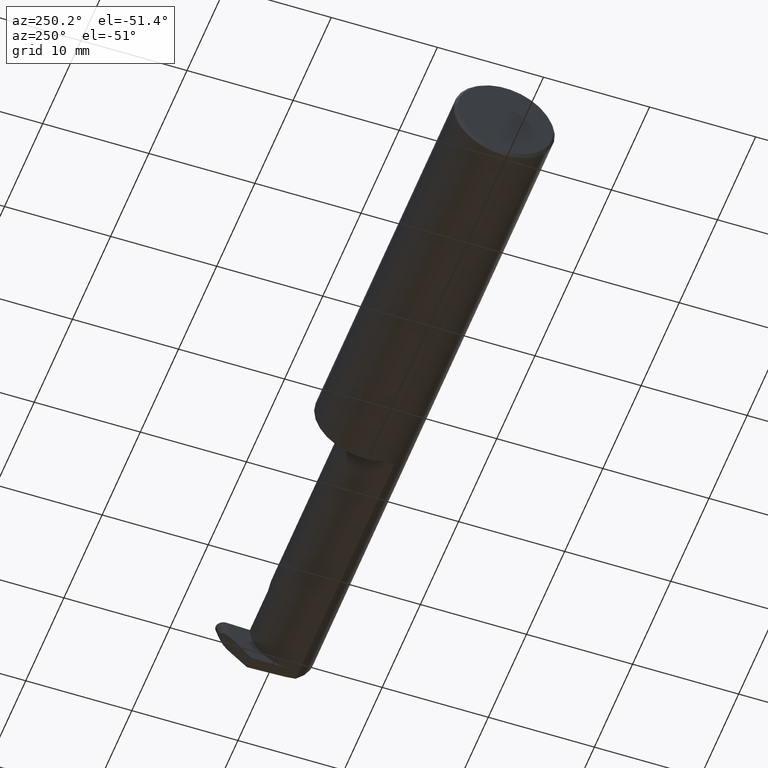
[diagram: clean part render]
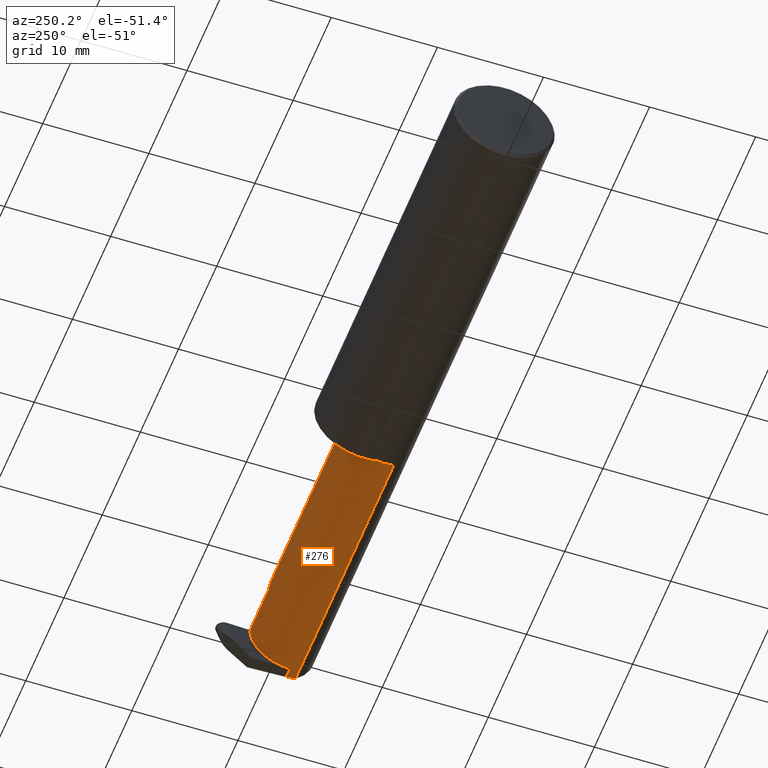
[diagram: same view with one face highlighted and labeled with its STEP entity id]
A machine part, auxiliary view. The second image highlights one B-rep face of the part: STEP entity #276.
In plain terms, the highlighted cylindrical surface (partial cylindrical patch) has radius 3.81 mm, axis along (-1, -0, -0).
Its self-contained STEP definition (entity closure, byte-faithful):
#25 = CARTESIAN_POINT ( 'NONE',  ( 1.474999999999999867, -0.1172600179964005812, 0.1461167706989303927 ) ) ;
#32 = VERTEX_POINT ( 'NONE', #378 ) ;
#43 = DIRECTION ( 'NONE',  ( -1.000000000000000000, -5.153652266948881677E-17, -0.000000000000000000 ) ) ;
#66 = EDGE_CURVE ( 'NONE', #537, #297, #584, .T. ) ;
#91 = CARTESIAN_POINT ( 'NONE',  ( 1.959450000000000136, -0.1172600179964006506, 0.1461167706989303650 ) ) ;
#96 =( BOUNDED_CURVE ( )  B_SPLINE_CURVE ( 3, ( #703, #152, #653, #478 ),
 .UNSPECIFIED., .F., .F. ) 
 B_SPLINE_CURVE_WITH_KNOTS ( ( 4, 4 ),
 ( 0.8789888184544275562, 1.107026853503871644 ),
 .UNSPECIFIED. ) 
 CURVE ( )  GEOMETRIC_REPRESENTATION_ITEM ( )  RATIONAL_B_SPLINE_CURVE ( ( 1.000000000000000000, 0.9956712472009929815, 0.9956712472009929815, 1.000000000000000000 ) ) 
 REPRESENTATION_ITEM ( '' )  );
#99 = CYLINDRICAL_SURFACE ( 'NONE', #461, 0.1499999999999999944 ) ;
#108 = VERTEX_POINT ( 'NONE', #237 ) ;
#120 = LINE ( 'NONE', #560, #262 ) ;
#122 = LINE ( 'NONE', #287, #509 ) ;
#129 = VECTOR ( 'NONE', #489, 39.37007874015748143 ) ;
#139 = VERTEX_POINT ( 'NONE', #571 ) ;
#150 = CARTESIAN_POINT ( 'NONE',  ( 2.447118648061411772, 0.06655862405286416816, -0.005234924505382331644 ) ) ;
#152 = CARTESIAN_POINT ( 'NONE',  ( 2.488245243745037527, -0.1061291577212408604, -0.1486999626928446339 ) ) ;
#171 = CARTESIAN_POINT ( 'NONE',  ( 2.449754845031671291, 0.002105059811798285982, -0.1500000000000000222 ) ) ;
#175 = EDGE_CURVE ( 'NONE', #608, #204, #677, .T. ) ;
#183 = CARTESIAN_POINT ( 'NONE',  ( 2.155331797197862720, 0.06664999999999998703, 0.1046682028021363453 ) ) ;
#192 = ORIENTED_EDGE ( 'NONE', *, *, #389, .F. ) ;
#202 = VECTOR ( 'NONE', #247, 39.37007874015748143 ) ;
#204 = VERTEX_POINT ( 'NONE', #290 ) ;
#214 = VERTEX_POINT ( 'NONE', #25 ) ;
#222 = EDGE_LOOP ( 'NONE', ( #641, #307, #367, #622, #672, #373, #192, #249, #596, #706 ) ) ;
#237 = CARTESIAN_POINT ( 'NONE',  ( 2.489018003393509648, -0.08335000000000003517, -0.1500000000000000500 ) ) ;
#242 = VECTOR ( 'NONE', #474, 39.37007874015748143 ) ;
#247 = DIRECTION ( 'NONE',  ( 1.000000000000000000, 5.153652266948881677E-17, 0.000000000000000000 ) ) ;
#249 = ORIENTED_EDGE ( 'NONE', *, *, #66, .F. ) ;
#256 = CARTESIAN_POINT ( 'NONE',  ( 2.487901662807321390, -0.1172600179964006090, -0.1461167706989303650 ) ) ;
#258 = CARTESIAN_POINT ( 'NONE',  ( 2.437903374698175529, 0.06664999999999991764, 0.000000000000000000 ) ) ;
#262 = VECTOR ( 'NONE', #280, 39.37007874015748143 ) ;
#275 = CARTESIAN_POINT ( 'NONE',  ( 1.450000000000000178, 0.06655862405286427919, -0.005234924505376313889 ) ) ;
#276 = ADVANCED_FACE ( 'NONE', ( #705 ), #99, .T. ) ;
#280 = DIRECTION ( 'NONE',  ( -1.000000000000000000, -5.153652266948881677E-17, -0.000000000000000000 ) ) ;
#283 = CARTESIAN_POINT ( 'NONE',  ( 2.260000000000000231, 0.06665000000000000091, 1.285879139104721225E-16 ) ) ;
#284 = AXIS2_PLACEMENT_3D ( 'NONE', #317, #43, #309 ) ;
#287 = CARTESIAN_POINT ( 'NONE',  ( 2.733184360054361939, -0.08335000000000003517, -0.1500000000000000500 ) ) ;
#289 = EDGE_CURVE ( 'NONE', #214, #410, #613, .T. ) ;
#290 = CARTESIAN_POINT ( 'NONE',  ( 2.260000000000000231, 0.06665000000000000091, 1.285879139104721225E-16 ) ) ;
#297 = VERTEX_POINT ( 'NONE', #150 ) ;
#307 = ORIENTED_EDGE ( 'NONE', *, *, #289, .F. ) ;
#309 = DIRECTION ( 'NONE',  ( 0.000000000000000000, -1.000000000000000000, 0.000000000000000000 ) ) ;
#310 = VERTEX_POINT ( 'NONE', #256 ) ;
#317 = CARTESIAN_POINT ( 'NONE',  ( 1.474999999999999867, -0.08335000000000004905, 0.000000000000000000 ) ) ;
#329 = CARTESIAN_POINT ( 'NONE',  ( 2.448662799063223705, 0.06357628547474619696, -0.09063792740366159728 ) ) ;
#330 = EDGE_CURVE ( 'NONE', #214, #608, #585, .T. ) ;
#351 = CARTESIAN_POINT ( 'NONE',  ( 2.090221225029926355, -0.01530148607434194015, 0.1697787749700729321 ) ) ;
#353 = LINE ( 'NONE', #628, #202 ) ;
#356 = EDGE_CURVE ( 'NONE', #139, #32, #650, .T. ) ;
#358 = CARTESIAN_POINT ( 'NONE',  ( 2.437811998751039599, 0.06655862405286418204, -0.005234924505381044479 ) ) ;
#366 = CARTESIAN_POINT ( 'NONE',  ( 1.450000000000000178, -0.08335000000000004905, 0.000000000000000000 ) ) ;
#367 = ORIENTED_EDGE ( 'NONE', *, *, #330, .T. ) ;
#373 = ORIENTED_EDGE ( 'NONE', *, *, #356, .F. ) ;
#378 = CARTESIAN_POINT ( 'NONE',  ( 2.437903374698175529, 0.06664999999999991764, 0.000000000000000000 ) ) ;
#389 = EDGE_CURVE ( 'NONE', #297, #139, #435, .T. ) ;
#395 = CARTESIAN_POINT ( 'NONE',  ( 1.474999999999999867, -0.1172600179964005812, -0.1461167706989303650 ) ) ;
#410 = VERTEX_POINT ( 'NONE', #395 ) ;
#417 = EDGE_CURVE ( 'NONE', #108, #537, #122, .T. ) ;
#431 = CARTESIAN_POINT ( 'NONE',  ( 2.437872916049129923, 0.06661954135095467244, -0.001744974835127015766 ) ) ;
#435 = LINE ( 'NONE', #275, #129 ) ;
#461 = AXIS2_PLACEMENT_3D ( 'NONE', #366, #469, #595 ) ;
#469 = DIRECTION ( 'NONE',  ( -1.000000000000000000, -5.153652266948881677E-17, -0.000000000000000000 ) ) ;
#471 = EDGE_CURVE ( 'NONE', #310, #410, #120, .T. ) ;
#474 = DIRECTION ( 'NONE',  ( 1.000000000000000000, 5.153652266948881677E-17, 0.000000000000000000 ) ) ;
#478 = CARTESIAN_POINT ( 'NONE',  ( 2.489018003393509648, -0.08335000000000003517, -0.1500000000000000500 ) ) ;
#489 = DIRECTION ( 'NONE',  ( -1.000000000000000000, -5.153652266948881677E-17, -0.000000000000000000 ) ) ;
#502 = EDGE_CURVE ( 'NONE', #204, #32, #353, .T. ) ;
#509 = VECTOR ( 'NONE', #619, 39.37007874015748143 ) ;
#522 = CARTESIAN_POINT ( 'NONE',  ( 2.113883229301068312, -0.1172600179964011224, 0.1461167706989300596 ) ) ;
#537 = VERTEX_POINT ( 'NONE', #692 ) ;
#554 = CARTESIAN_POINT ( 'NONE',  ( 2.447118648061411772, 0.06655862405286416816, -0.005234924505382331644 ) ) ;
#560 = CARTESIAN_POINT ( 'NONE',  ( 1.959450000000000136, -0.1172600179964006506, -0.1461167706989303650 ) ) ;
#565 = CARTESIAN_POINT ( 'NONE',  ( 2.113883229301068312, -0.1172600179964011224, 0.1461167706989300596 ) ) ;
#571 = CARTESIAN_POINT ( 'NONE',  ( 2.437811998751039599, 0.06655862405286418204, -0.005234924505381044479 ) ) ;
#584 =( BOUNDED_CURVE ( )  B_SPLINE_CURVE ( 3, ( #660, #171, #329, #554 ),
 .UNSPECIFIED., .F., .T. ) 
 B_SPLINE_CURVE_WITH_KNOTS ( ( 4, 4 ),
 ( 3.159045946109733549, 4.694935687864695950 ),
 .UNSPECIFIED. ) 
 CURVE ( )  GEOMETRIC_REPRESENTATION_ITEM ( )  RATIONAL_B_SPLINE_CURVE ( ( 1.000000000000000000, 0.8128932002257782674, 0.8128932002257782674, 1.000000000000000000 ) ) 
 REPRESENTATION_ITEM ( '' )  );
#585 = LINE ( 'NONE', #91, #242 ) ;
#595 = DIRECTION ( 'NONE',  ( 0.000000000000000000, -1.000000000000000000, 0.000000000000000000 ) ) ;
#596 = ORIENTED_EDGE ( 'NONE', *, *, #417, .F. ) ;
#608 = VERTEX_POINT ( 'NONE', #522 ) ;
#613 = CIRCLE ( 'NONE', #284, 0.1499999999999999944 ) ;
#619 = DIRECTION ( 'NONE',  ( -1.000000000000000000, -0.000000000000000000, -0.000000000000000000 ) ) ;
#622 = ORIENTED_EDGE ( 'NONE', *, *, #175, .T. ) ;
#628 = CARTESIAN_POINT ( 'NONE',  ( 1.450000000000000178, 0.06664999999999995928, 1.285879139104721225E-16 ) ) ;
#641 = ORIENTED_EDGE ( 'NONE', *, *, #471, .T. ) ;
#645 = CARTESIAN_POINT ( 'NONE',  ( 2.437842457400084761, 0.06658908270190942724, -0.003489949670254031966 ) ) ;
#650 = B_SPLINE_CURVE_WITH_KNOTS ( 'NONE', 3,
 ( #358, #645, #431, #258 ),
 .UNSPECIFIED., .F., .F.,
 ( 4, 4 ),
 ( 0.000000000000000000, 1.000000000000000000 ),
 .UNSPECIFIED. ) ;
#653 = CARTESIAN_POINT ( 'NONE',  ( 2.488618975064261996, -0.09477667630339417504, -0.1500000000000000500 ) ) ;
#660 = CARTESIAN_POINT ( 'NONE',  ( 2.449781798287666845, -0.08334999999999999354, -0.1500000000000000500 ) ) ;
#662 = EDGE_CURVE ( 'NONE', #310, #108, #96, .T. ) ;
#672 = ORIENTED_EDGE ( 'NONE', *, *, #502, .T. ) ;
#677 =( BOUNDED_CURVE ( )  B_SPLINE_CURVE ( 3, ( #565, #351, #183, #283 ),
 .UNSPECIFIED., .F., .T. ) 
 B_SPLINE_CURVE_WITH_KNOTS ( ( 4, 4 ),
 ( 6.055147272130139591, 7.853981633974482790 ),
 .UNSPECIFIED. ) 
 CURVE ( )  GEOMETRIC_REPRESENTATION_ITEM ( )  RATIONAL_B_SPLINE_CURVE ( ( 1.000000000000000000, 0.7480442670255260662, 0.7480442670255260662, 1.000000000000000000 ) ) 
 REPRESENTATION_ITEM ( '' )  );
#692 = CARTESIAN_POINT ( 'NONE',  ( 2.449781798287666845, -0.08334999999999999354, -0.1500000000000000500 ) ) ;
#703 = CARTESIAN_POINT ( 'NONE',  ( 2.487901662807321390, -0.1172600179964006090, -0.1461167706989303650 ) ) ;
#705 = FACE_OUTER_BOUND ( 'NONE', #222, .T. ) ;
#706 = ORIENTED_EDGE ( 'NONE', *, *, #662, .F. ) ;